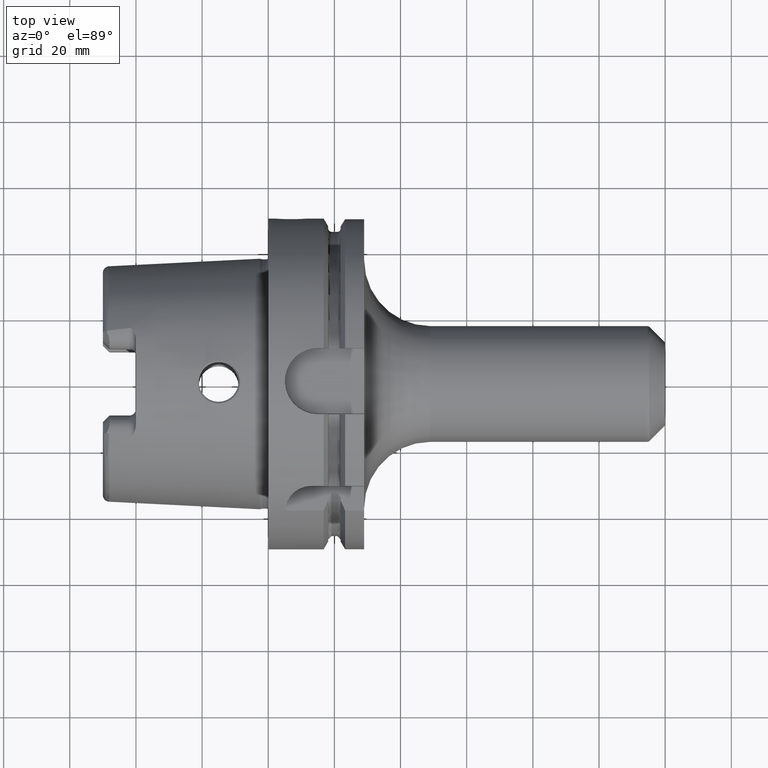
[diagram: clean part render]
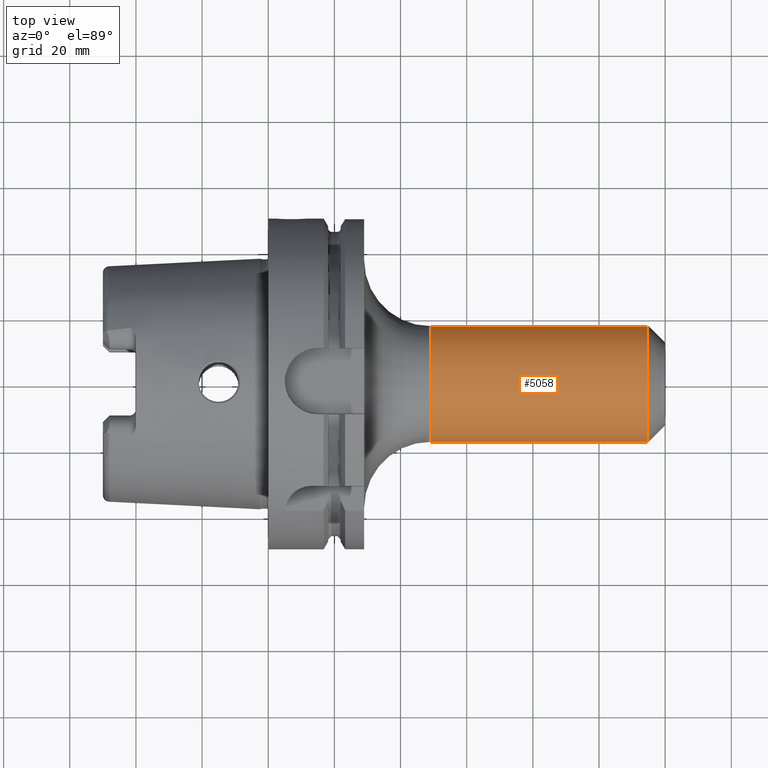
[diagram: same view with one face highlighted and labeled with its STEP entity id]
A machine part, top view. The second image highlights one B-rep face of the part: STEP entity #5058.
In plain terms, the highlighted cylindrical surface (partial cylindrical patch) has radius 17.5 mm, axis along (1, 0, 0).
Its self-contained STEP definition (entity closure, byte-faithful):
#1820=CARTESIAN_POINT('',(1.145857864376E2,0.E0,0.E0));
#1821=DIRECTION('',(-1.E0,0.E0,0.E0));
#1822=DIRECTION('',(0.E0,-1.E0,0.E0));
#1823=AXIS2_PLACEMENT_3D('',#1820,#1821,#1822);
#1825=CARTESIAN_POINT('',(4.9E1,0.E0,0.E0));
#1826=DIRECTION('',(1.E0,0.E0,0.E0));
#1827=DIRECTION('',(0.E0,1.E0,0.E0));
#1828=AXIS2_PLACEMENT_3D('',#1825,#1826,#1827);
#1845=DIRECTION('',(-1.E0,0.E0,0.E0));
#1846=VECTOR('',#1845,6.558578643763E1);
#1847=CARTESIAN_POINT('',(1.145857864376E2,1.75E1,-1.646014649004E-13));
#1848=LINE('',#1847,#1846);
#1854=DIRECTION('',(-1.E0,0.E0,0.E0));
#1855=VECTOR('',#1854,6.558578643763E1);
#1856=CARTESIAN_POINT('',(1.145857864376E2,-1.75E1,1.637884168395E-13));
#1857=LINE('',#1856,#1855);
#3167=CARTESIAN_POINT('',(4.9E1,-1.75E1,0.E0));
#3168=CARTESIAN_POINT('',(4.9E1,1.75E1,0.E0));
#3169=VERTEX_POINT('',#3167);
#3170=VERTEX_POINT('',#3168);
#3191=CARTESIAN_POINT('',(1.145857864376E2,1.75E1,0.E0));
#3192=CARTESIAN_POINT('',(1.145857864376E2,-1.75E1,0.E0));
#3193=VERTEX_POINT('',#3191);
#3194=VERTEX_POINT('',#3192);
#5044=CARTESIAN_POINT('',(2.445E1,0.E0,0.E0));
#5045=DIRECTION('',(1.E0,0.E0,0.E0));
#5046=DIRECTION('',(0.E0,-1.E0,0.E0));
#5047=AXIS2_PLACEMENT_3D('',#5044,#5045,#5046);
#5048=CYLINDRICAL_SURFACE('',#5047,1.75E1);
#5050=ORIENTED_EDGE('',*,*,#5049,.F.);
#5052=ORIENTED_EDGE('',*,*,#5051,.T.);
#5053=ORIENTED_EDGE('',*,*,#5038,.F.);
#5055=ORIENTED_EDGE('',*,*,#5054,.F.);
#5056=EDGE_LOOP('',(#5050,#5052,#5053,#5055));
#5057=FACE_OUTER_BOUND('',#5056,.F.);
#5058=ADVANCED_FACE('',(#5057),#5048,.T.);
#1824=CIRCLE('',#1823,1.75E1);
#1829=CIRCLE('',#1828,1.75E1);
#5038=EDGE_CURVE('',#3170,#3169,#1829,.T.);
#5049=EDGE_CURVE('',#3194,#3193,#1824,.T.);
#5051=EDGE_CURVE('',#3194,#3169,#1857,.T.);
#5054=EDGE_CURVE('',#3193,#3170,#1848,.T.);